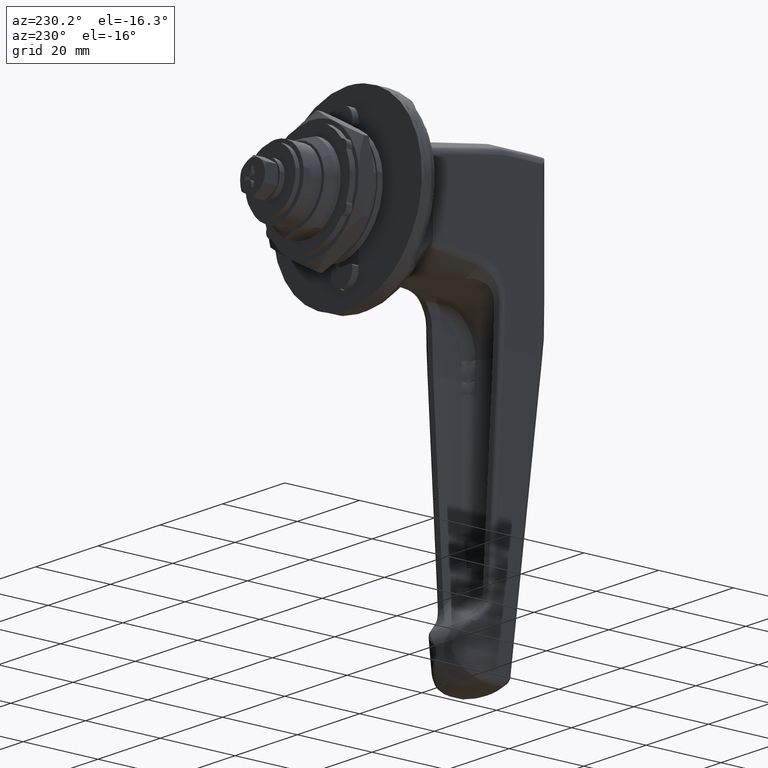
[diagram: clean part render]
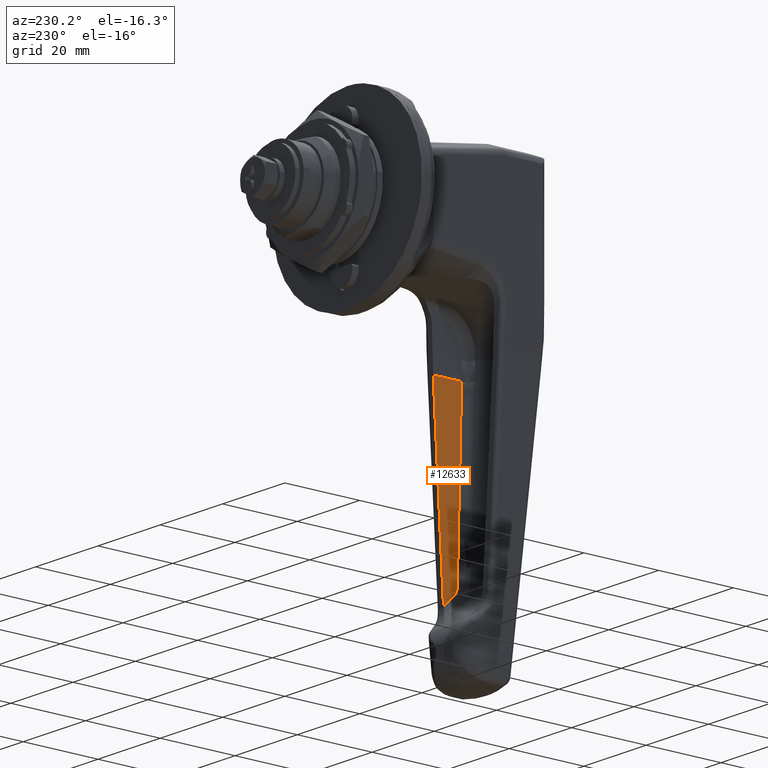
[diagram: same view with one face highlighted and labeled with its STEP entity id]
A machine part, auxiliary view. The second image highlights one B-rep face of the part: STEP entity #12633.
In plain terms, the highlighted face is a freeform B-spline surface patch.
Its self-contained STEP definition (entity closure, byte-faithful):
#11781=CARTESIAN_POINT('',(-34.968443619576952,-6.608361053234900,-75.320621912428095));
#11782=VERTEX_POINT('',#11781);
#11798=CARTESIAN_POINT('',(-34.099314510103753,-6.485295066253970,-77.202751811248191));
#11799=VERTEX_POINT('',#11798);
#11800=CARTESIAN_POINT('',(-34.968443619576952,-6.608361053234974,-75.320621912428024));
#11801=CARTESIAN_POINT('',(-34.880374808681744,-6.536365907111727,-76.421691512670080));
#11802=CARTESIAN_POINT('',(-34.099314510103753,-6.485295066254041,-77.202751811248177));
#11810=(BOUNDED_CURVE()B_SPLINE_CURVE(2,(#11800,#11801,#11802),.UNSPECIFIED.,.F.,.U.)CURVE()GEOMETRIC_REPRESENTATION_ITEM()QUASI_UNIFORM_CURVE()RATIONAL_B_SPLINE_CURVE((1.0,0.938411803039722,1.0))REPRESENTATION_ITEM(''));
#11811=EDGE_CURVE('',#11782,#11799,#11810,.T.);
#11864=CARTESIAN_POINT('',(-38.582344357987701,-9.579153000000000,-29.886326999999849));
#11865=VERTEX_POINT('',#11864);
#11881=CARTESIAN_POINT('',(-38.379214499579902,-9.396623448338470,-32.677872698598698));
#11882=VERTEX_POINT('',#11881);
#11883=CARTESIAN_POINT('',(-38.582344357987701,-9.579153000000000,-29.886326999999849));
#11884=CARTESIAN_POINT('',(-38.490796777820385,-9.487840562387499,-31.282828772593415));
#11885=CARTESIAN_POINT('',(-38.379214499579930,-9.396623448338561,-32.677872698598676));
#11893=(BOUNDED_CURVE()B_SPLINE_CURVE(2,(#11883,#11884,#11885),.UNSPECIFIED.,.F.,.U.)CURVE()GEOMETRIC_REPRESENTATION_ITEM()QUASI_UNIFORM_CURVE()RATIONAL_B_SPLINE_CURVE((1.0,0.999974246905011,1.0))REPRESENTATION_ITEM(''));
#11894=EDGE_CURVE('',#11865,#11882,#11893,.T.);
#12554=CARTESIAN_POINT('',(-31.0,-6.282641572789260,-80.302066321352299));
#12555=VERTEX_POINT('',#12554);
#12556=CARTESIAN_POINT('',(-34.099314510103753,-6.485295066253970,-77.202751811248191));
#12557=CARTESIAN_POINT('',(-31.0,-6.282641572789260,-80.302066321352299));
#12558=QUASI_UNIFORM_CURVE('',1,(#12556,#12557),.UNSPECIFIED.,.F.,.U.);
#12559=EDGE_CURVE('',#11799,#12555,#12558,.T.);
#12606=CARTESIAN_POINT('',(-38.961082159262638,-9.743813696677156,-27.368061572001100));
#12607=CARTESIAN_POINT('',(-38.961082159262638,-6.117980994004519,-82.820329946343705));
#12608=CARTESIAN_POINT('',(-30.621261724184969,-9.743813696677156,-27.368061572001100));
#12609=CARTESIAN_POINT('',(-30.621261724184969,-6.117980994004519,-82.820329946343705));
#12610=B_SPLINE_SURFACE_WITH_KNOTS('',1,1,((#12606,#12608),(#12607,#12609)),.UNSPECIFIED.,.F.,.F.,.U.,(2,2),(2,2),(0.0,55.570682294244747),(0.0,8.339820435077666),.UNSPECIFIED.);
#12611=ORIENTED_EDGE('',*,*,#12559,.F.);
#12612=ORIENTED_EDGE('',*,*,#11811,.F.);
#12613=CARTESIAN_POINT('',(-38.379214499579902,-9.396623448338470,-32.677872698598698));
#12614=CARTESIAN_POINT('',(-34.968443619576952,-6.608361053234900,-75.320621912428095));
#12615=QUASI_UNIFORM_CURVE('',1,(#12613,#12614),.UNSPECIFIED.,.F.,.U.);
#12616=EDGE_CURVE('',#11882,#11782,#12615,.T.);
#12617=ORIENTED_EDGE('',*,*,#12616,.F.);
#12618=ORIENTED_EDGE('',*,*,#11894,.F.);
#12619=CARTESIAN_POINT('',(-31.0,-9.579153000000000,-29.886326999999849));
#12620=VERTEX_POINT('',#12619);
#12621=CARTESIAN_POINT('',(-38.582344357987701,-9.579153000000000,-29.886326999999849));
#12622=CARTESIAN_POINT('',(-31.0,-9.579153000000000,-29.886326999999849));
#12623=QUASI_UNIFORM_CURVE('',1,(#12621,#12622),.UNSPECIFIED.,.F.,.U.);
#12624=EDGE_CURVE('',#11865,#12620,#12623,.T.);
#12625=ORIENTED_EDGE('',*,*,#12624,.T.);
#12626=CARTESIAN_POINT('',(-31.0,-6.282641572789260,-80.302066321352299));
#12627=CARTESIAN_POINT('',(-31.0,-9.579153000000000,-29.886326999999849));
#12628=QUASI_UNIFORM_CURVE('',1,(#12626,#12627),.UNSPECIFIED.,.F.,.U.);
#12629=EDGE_CURVE('',#12555,#12620,#12628,.T.);
#12630=ORIENTED_EDGE('',*,*,#12629,.F.);
#12631=EDGE_LOOP('',(#12611,#12612,#12617,#12618,#12625,#12630));
#12632=FACE_OUTER_BOUND('',#12631,.T.);
#12633=ADVANCED_FACE('',(#12632),#12610,.F.);